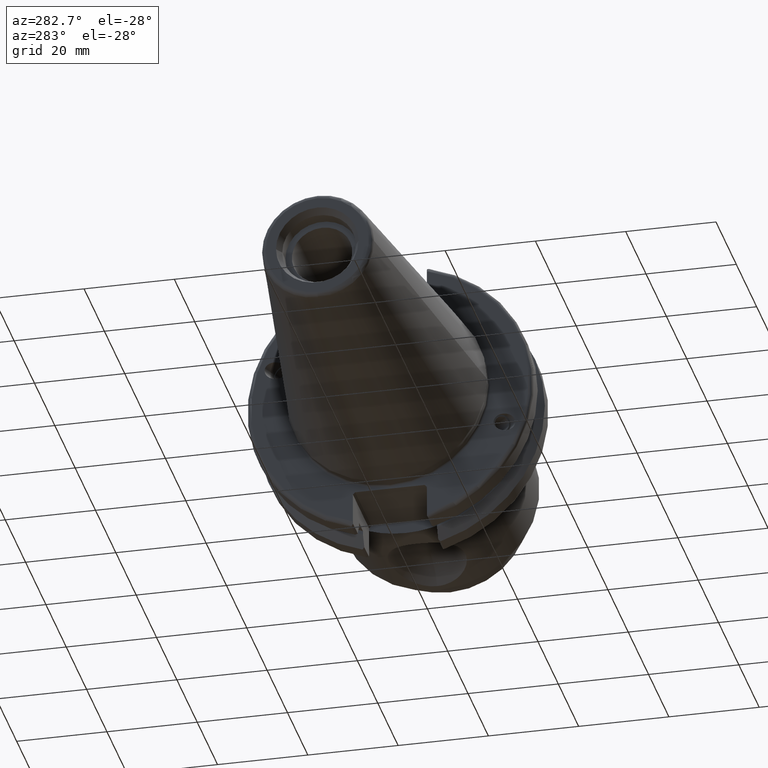
[diagram: clean part render]
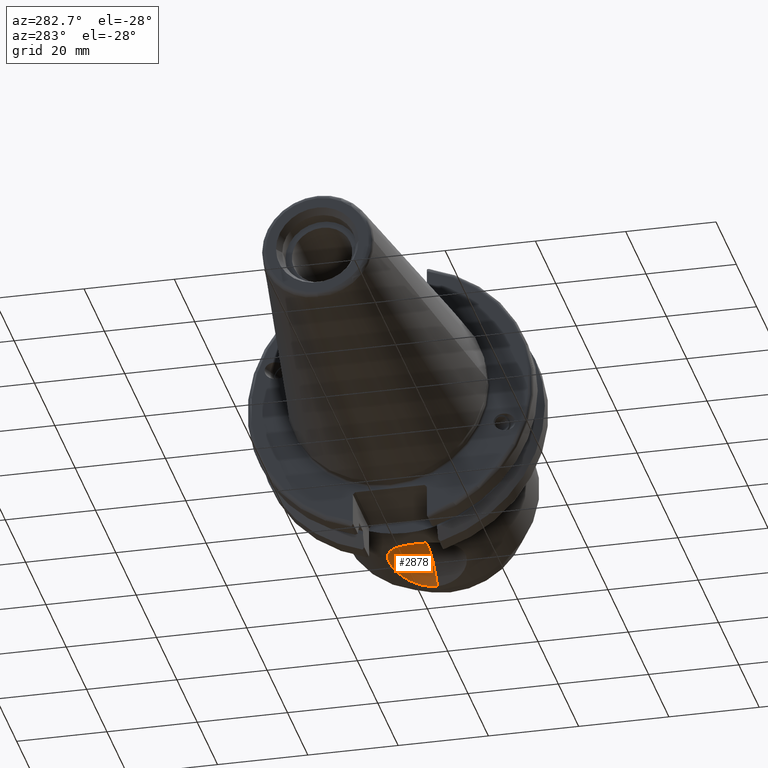
[diagram: same view with one face highlighted and labeled with its STEP entity id]
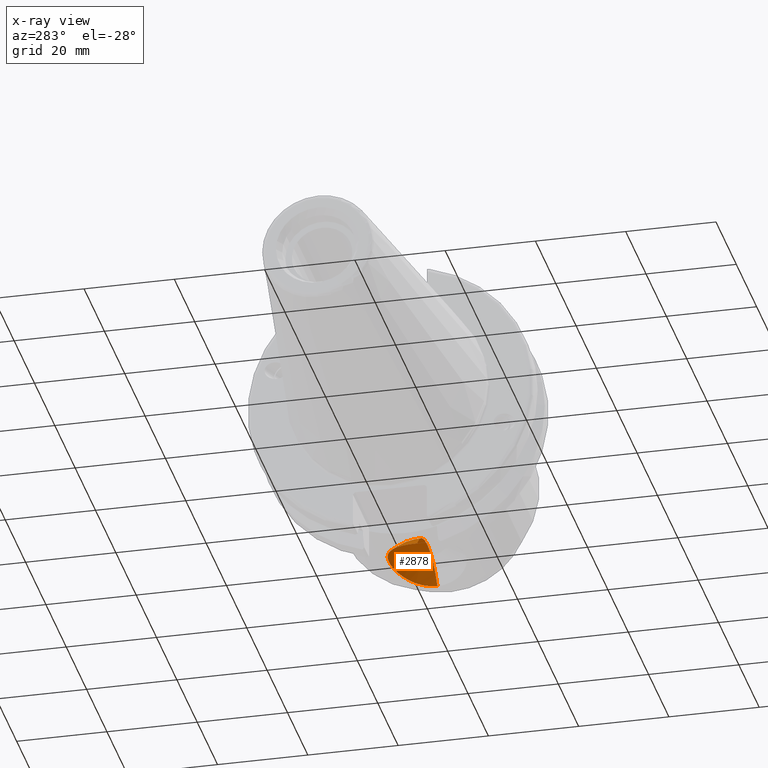
[diagram: x-ray of the same camera — body ghosted, the highlighted face saturated]
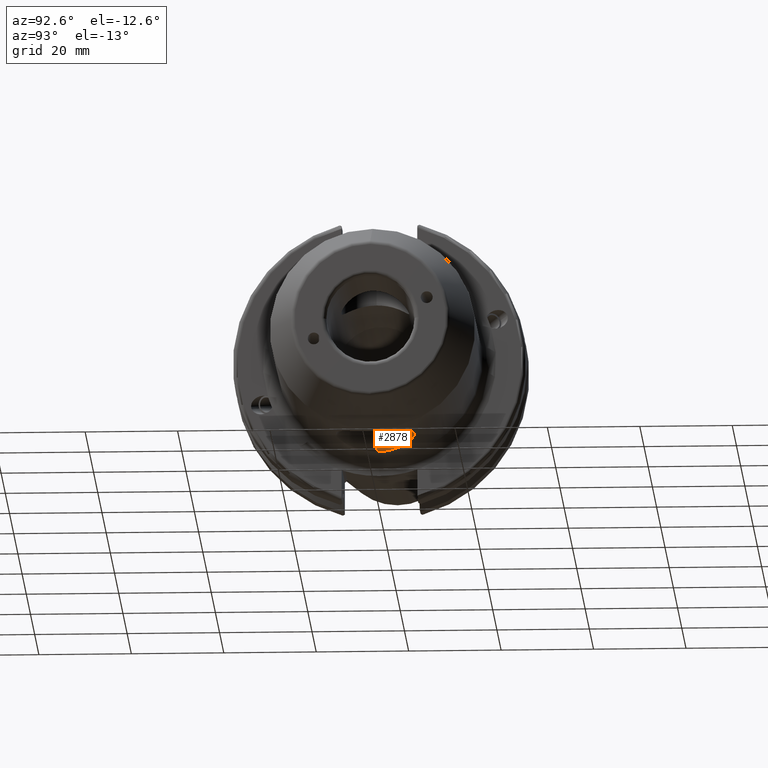
[diagram: same view with one face highlighted and labeled with its STEP entity id]
A machine part, auxiliary view. The second image highlights one B-rep face of the part: STEP entity #2878.
The next image is the same camera in x-ray: the body ghosted, the highlighted face saturated — about 0% of this face is hidden behind the body in this view.
A second angle (auxiliary view) of the same face is appended — the face is thin or edge-on in the first view.
In plain terms, the highlighted spherical surface has radius 12.5 mm.
Its self-contained STEP definition (entity closure, byte-faithful):
#359=CARTESIAN_POINT('',(4.99E1,0.E0,-2.2225E1));
#360=CARTESIAN_POINT('',(4.99E1,5.266290554217E-1,-2.2225E1));
#361=CARTESIAN_POINT('',(4.979395168700E1,1.566257158636E0,-2.218892601817E1));
#362=CARTESIAN_POINT('',(4.927199316742E1,3.151051165093E0,-2.201791786874E1));
#363=CARTESIAN_POINT('',(4.846314688054E1,4.532134274058E0,-2.177135091096E1));
#364=CARTESIAN_POINT('',(4.738208981596E1,5.759682141090E0,-2.147654047276E1));
#365=CARTESIAN_POINT('',(4.604667094431E1,6.802810682842E0,-2.116608645173E1));
#366=CARTESIAN_POINT('',(4.442764855761E1,7.650863542211E0,-2.087128953820E1));
#367=CARTESIAN_POINT('',(4.262422491685E1,8.228468318903E0,-2.064717369532E1));
#368=CARTESIAN_POINT('',(4.072215137463E1,8.494900942841E0,-2.053749324676E1));
#369=CARTESIAN_POINT('',(3.911088193251E1,8.496472447896E0,-2.053683753599E1));
#370=CARTESIAN_POINT('',(3.722614872868E1,8.238790116959E0,-2.064295809076E1));
#371=CARTESIAN_POINT('',(3.543057798754E1,7.674748786331E0,-2.086237962810E1));
#372=CARTESIAN_POINT('',(3.379581424746E1,6.831222632456E0,-2.115695619527E1));
#373=CARTESIAN_POINT('',(3.243730993059E1,5.780107640965E0,-2.147134385689E1));
#374=CARTESIAN_POINT('',(3.133596721890E1,4.533502663176E0,-2.177147402450E1));
#375=CARTESIAN_POINT('',(3.052337615752E1,3.140680000151E0,-2.201940569538E1));
#376=CARTESIAN_POINT('',(3.000592258261E1,1.563056913621E0,-2.218898022348E1));
#377=CARTESIAN_POINT('',(2.99E1,5.252032326271E-1,-2.2225E1));
#378=CARTESIAN_POINT('',(2.99E1,0.E0,-2.2225E1));
#450=CARTESIAN_POINT('',(3.99E1,0.E0,-2.9725E1));
#451=DIRECTION('',(0.E0,1.E0,0.E0));
#452=DIRECTION('',(-1.477928890381E-14,0.E0,1.E0));
#453=AXIS2_PLACEMENT_3D('',#450,#451,#452);
#455=CARTESIAN_POINT('',(3.99E1,0.E0,-2.9725E1));
#456=DIRECTION('',(0.E0,-1.E0,0.E0));
#457=DIRECTION('',(1.477928890381E-14,0.E0,1.E0));
#458=AXIS2_PLACEMENT_3D('',#455,#456,#457);
#2472=VERTEX_POINT('',#359);
#2473=VERTEX_POINT('',#378);
#2476=CARTESIAN_POINT('',(3.99E1,0.E0,-1.7225E1));
#2477=VERTEX_POINT('',#2476);
#2868=CARTESIAN_POINT('',(3.99E1,0.E0,-2.9725E1));
#2869=DIRECTION('',(0.E0,0.E0,1.E0));
#2870=DIRECTION('',(-1.E0,0.E0,0.E0));
#2871=AXIS2_PLACEMENT_3D('',#2868,#2869,#2870);
#2872=SPHERICAL_SURFACE('',#2871,1.25E1);
#2873=ORIENTED_EDGE('',*,*,#2798,.T.);
#2874=ORIENTED_EDGE('',*,*,#2863,.F.);
#2875=ORIENTED_EDGE('',*,*,#2861,.T.);
#2876=EDGE_LOOP('',(#2873,#2874,#2875));
#2877=FACE_OUTER_BOUND('',#2876,.F.);
#2878=ADVANCED_FACE('',(#2877),#2872,.F.);
#379=B_SPLINE_CURVE_WITH_KNOTS('',3,(#359,#360,#361,#362,#363,#364,#365,#366,
#367,#368,#369,#370,#371,#372,#373,#374,#375,#376,#377,#378),.UNSPECIFIED.,.F.,
.F.,(4,1,1,1,1,1,1,1,1,1,1,1,1,1,1,1,1,4),(0.E0,5.882352941176E-2,
1.176470588235E-1,1.764705882353E-1,2.352941176471E-1,2.941176470588E-1,
3.529411764706E-1,4.117647058824E-1,4.705882352941E-1,5.294117647059E-1,
5.882352941176E-1,6.470588235294E-1,7.058823529412E-1,7.647058823529E-1,
8.235294117647E-1,8.823529411765E-1,9.411764705882E-1,1.E0),.UNSPECIFIED.);
#454=CIRCLE('',#453,1.25E1);
#459=CIRCLE('',#458,1.25E1);
#2798=EDGE_CURVE('',#2472,#2473,#379,.T.);
#2861=EDGE_CURVE('',#2477,#2472,#454,.T.);
#2863=EDGE_CURVE('',#2477,#2473,#459,.T.);